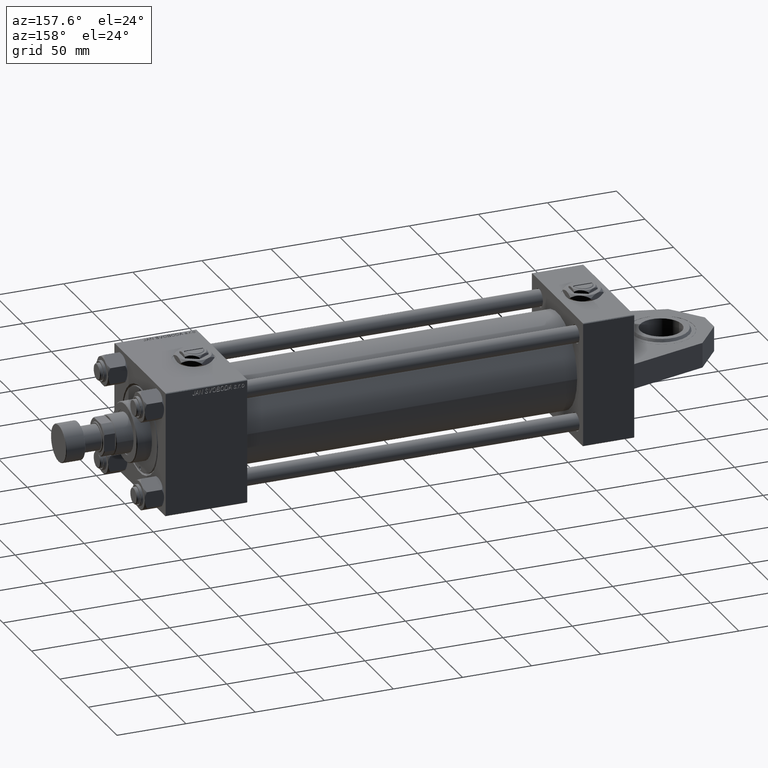
[diagram: clean part render]
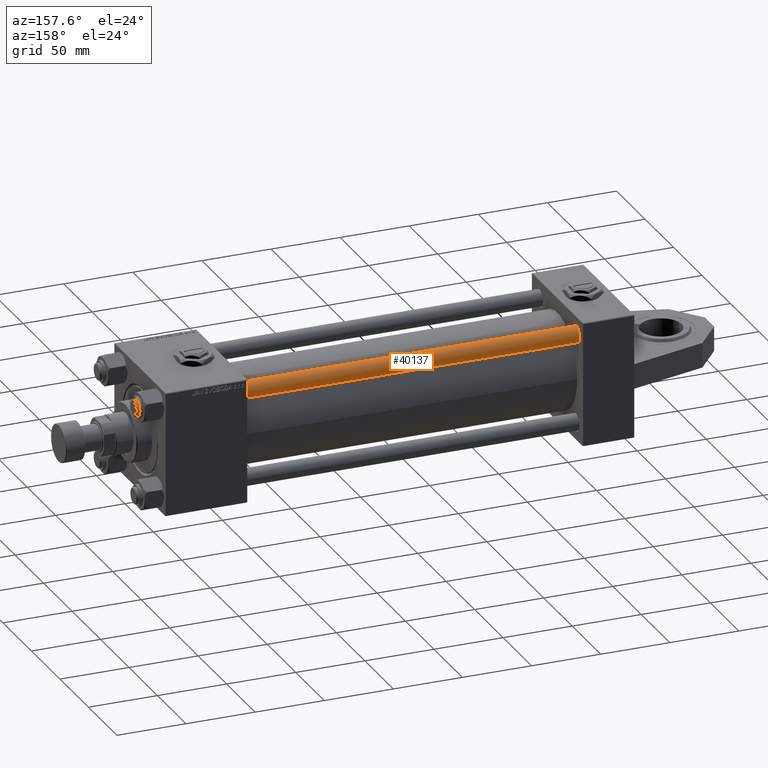
[diagram: same view with one face highlighted and labeled with its STEP entity id]
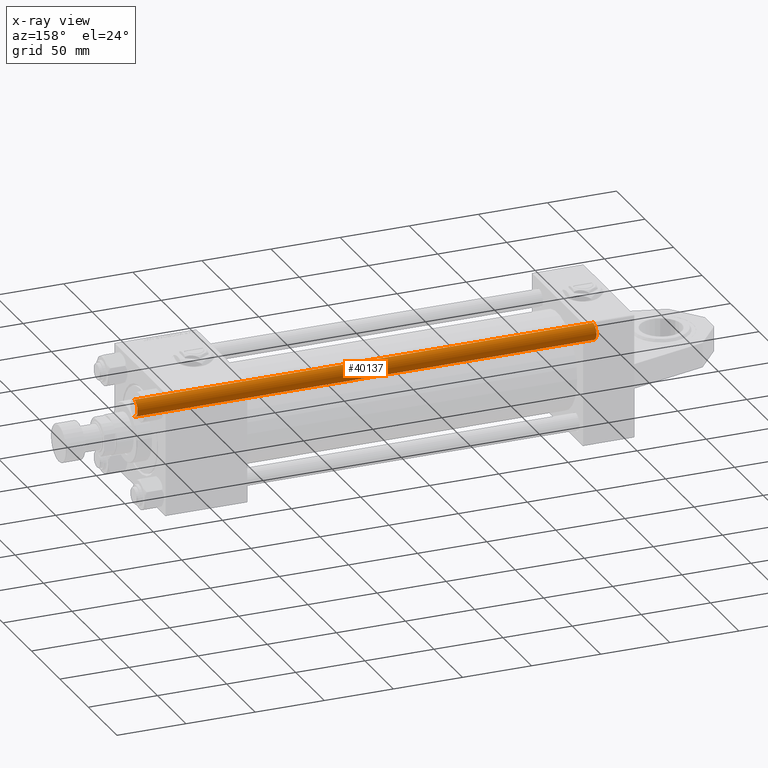
[diagram: x-ray of the same camera — body ghosted, the highlighted face saturated]
A machine part, auxiliary view. The second image highlights one B-rep face of the part: STEP entity #40137.
The next image is the same camera in x-ray: the body ghosted, the highlighted face saturated — about 0% of this face is hidden behind the body in this view.
In plain terms, the highlighted cylindrical surface (edge-blend (fillet) strip) has radius 6 mm, axis along (1, 0, 0).
Its self-contained STEP definition (entity closure, byte-faithful):
#2214 = CIRCLE ( 'NONE', #29433, 6.000000000000000888 ) ;
#3896 = LINE ( 'NONE', #44139, #4968 ) ;
#3900 = DIRECTION ( 'NONE',  ( 1.000000000000000000, 0.000000000000000000, 0.000000000000000000 ) ) ;
#4342 = EDGE_CURVE ( 'NONE', #33884, #33983, #13007, .T. ) ;
#4968 = VECTOR ( 'NONE', #52395, 1000.000000000000000 ) ;
#5179 = DIRECTION ( 'NONE',  ( -1.000000000000000000, 0.000000000000000000, 0.000000000000000000 ) ) ;
#7857 = EDGE_CURVE ( 'NONE', #33884, #47321, #2214, .T. ) ;
#8404 = CARTESIAN_POINT ( 'NONE',  ( 0.000000000000000000, 0.000000000000000000, 0.5000000000000004441 ) ) ;
#9173 = CYLINDRICAL_SURFACE ( 'NONE', #33378, 6.000000000000000888 ) ;
#9958 = ORIENTED_EDGE ( 'NONE', *, *, #32521, .T. ) ;
#10794 = EDGE_LOOP ( 'NONE', ( #20778, #46393, #9958, #31889 ) ) ;
#12672 = DIRECTION ( 'NONE',  ( -0.000000000000000000, -0.000000000000000000, 1.000000000000000000 ) ) ;
#13007 = LINE ( 'NONE', #49247, #21677 ) ;
#13114 = EDGE_CURVE ( 'NONE', #47321, #21219, #3896, .T. ) ;
#18414 = CARTESIAN_POINT ( 'NONE',  ( -6.000000000000000888, 0.000000000000000000, 0.5000000000000004441 ) ) ;
#19567 = AXIS2_PLACEMENT_3D ( 'NONE', #8404, #12672, #24669 ) ;
#20778 = ORIENTED_EDGE ( 'NONE', *, *, #7857, .T. ) ;
#21219 = VERTEX_POINT ( 'NONE', #35455 ) ;
#21677 = VECTOR ( 'NONE', #33531, 1000.000000000000000 ) ;
#22403 = CARTESIAN_POINT ( 'NONE',  ( -6.000000000000000888, 0.000000000000000000, 332.5000000000001137 ) ) ;
#24669 = DIRECTION ( 'NONE',  ( 1.000000000000000000, 0.000000000000000000, 0.000000000000000000 ) ) ;
#25430 = CARTESIAN_POINT ( 'NONE',  ( 0.000000000000000000, 0.000000000000000000, 333.0000000000000000 ) ) ;
#29433 = AXIS2_PLACEMENT_3D ( 'NONE', #40684, #36419, #3900 ) ;
#29541 = CARTESIAN_POINT ( 'NONE',  ( 6.000000000000000888, 7.347880794884120722E-16, 332.5000000000001137 ) ) ;
#31889 = ORIENTED_EDGE ( 'NONE', *, *, #4342, .F. ) ;
#32521 = EDGE_CURVE ( 'NONE', #21219, #33983, #40846, .T. ) ;
#33378 = AXIS2_PLACEMENT_3D ( 'NONE', #25430, #41709, #5179 ) ;
#33531 = DIRECTION ( 'NONE',  ( -0.000000000000000000, -0.000000000000000000, -1.000000000000000000 ) ) ;
#33884 = VERTEX_POINT ( 'NONE', #22403 ) ;
#33983 = VERTEX_POINT ( 'NONE', #18414 ) ;
#35455 = CARTESIAN_POINT ( 'NONE',  ( 6.000000000000000888, 7.347880794884120722E-16, 0.5000000000000004441 ) ) ;
#36419 = DIRECTION ( 'NONE',  ( 0.000000000000000000, 0.000000000000000000, -1.000000000000000000 ) ) ;
#40137 = ADVANCED_FACE ( 'NONE', ( #45688 ), #9173, .T. ) ;
#40684 = CARTESIAN_POINT ( 'NONE',  ( 0.000000000000000000, 0.000000000000000000, 332.5000000000001137 ) ) ;
#40846 = CIRCLE ( 'NONE', #19567, 6.000000000000000888 ) ;
#41709 = DIRECTION ( 'NONE',  ( -0.000000000000000000, -0.000000000000000000, -1.000000000000000000 ) ) ;
#44139 = CARTESIAN_POINT ( 'NONE',  ( 6.000000000000000888, 7.347880794884120722E-16, 333.0000000000000000 ) ) ;
#45688 = FACE_OUTER_BOUND ( 'NONE', #10794, .T. ) ;
#46393 = ORIENTED_EDGE ( 'NONE', *, *, #13114, .T. ) ;
#47321 = VERTEX_POINT ( 'NONE', #29541 ) ;
#49247 = CARTESIAN_POINT ( 'NONE',  ( -6.000000000000000888, 0.000000000000000000, 333.0000000000000000 ) ) ;
#52395 = DIRECTION ( 'NONE',  ( -0.000000000000000000, -0.000000000000000000, -1.000000000000000000 ) ) ;